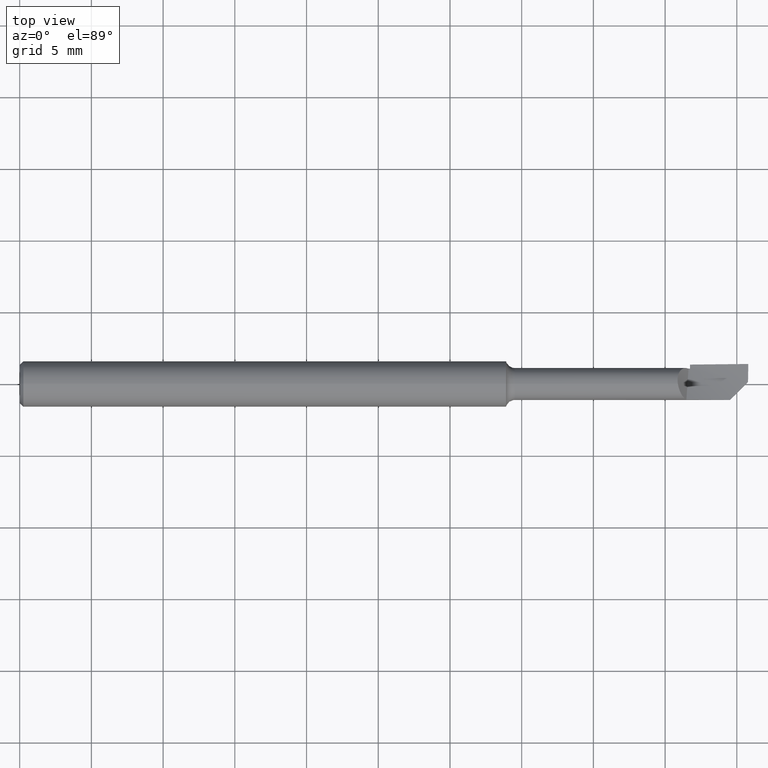
[diagram: clean part render]
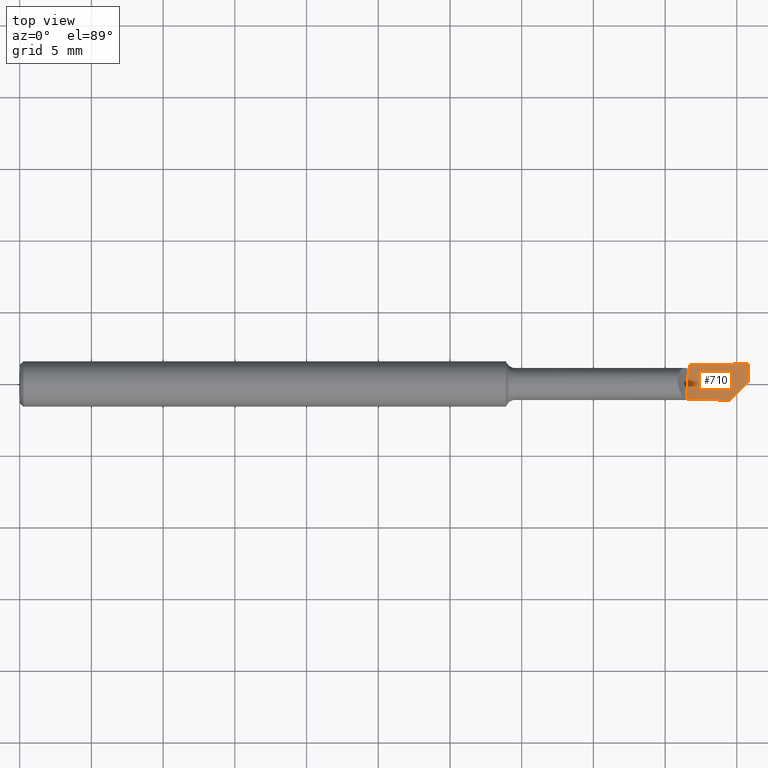
[diagram: same view with one face highlighted and labeled with its STEP entity id]
A machine part, top view. The second image highlights one B-rep face of the part: STEP entity #710.
In plain terms, the highlighted face is a freeform B-spline surface patch.
Its self-contained STEP definition (entity closure, byte-faithful):
#2 = CARTESIAN_POINT ( 'NONE',  ( 1.982541513044761672, -0.01094484340355666996, -0.003318865561971373352 ) ) ;
#7 = CARTESIAN_POINT ( 'NONE',  ( 1.730555555555556291, -0.03801979288879211993, 0.007770946227939592478 ) ) ;
#8 = CARTESIAN_POINT ( 'NONE',  ( 2.000000000000000000, 0.05500000000000000028, 0.000000000000000000 ) ) ;
#43 =( BOUNDED_CURVE ( )  B_SPLINE_CURVE ( 2, ( #347, #217, #472 ),
 .UNSPECIFIED., .F., .T. ) 
 B_SPLINE_CURVE_WITH_KNOTS ( ( 3, 3 ),
 ( 0.7035278658487924552, 1.000000000000000000 ),
 .UNSPECIFIED. ) 
 CURVE ( )  GEOMETRIC_REPRESENTATION_ITEM ( )  RATIONAL_B_SPLINE_CURVE ( ( 0.9810338680910000164, 0.9789367080174533609, 0.9902185229795289478 ) ) 
 REPRESENTATION_ITEM ( '' )  );
#55 = VERTEX_POINT ( 'NONE', #410 ) ;
#62 = CARTESIAN_POINT ( 'NONE',  ( 1.835957477719311948, 0.04247873417013275921, -0.01146983623698223133 ) ) ;
#74 = FACE_OUTER_BOUND ( 'NONE', #510, .T. ) ;
#85 = CARTESIAN_POINT ( 'NONE',  ( 2.000000000000000000, 0.05500000000000000028, 0.000000000000000000 ) ) ;
#94 = CARTESIAN_POINT ( 'NONE',  ( 1.832012808589526198, -0.01525372083031852066, -6.782912152967197710E-05 ) ) ;
#119 = ORIENTED_EDGE ( 'NONE', *, *, #494, .F. ) ;
#127 = EDGE_CURVE ( 'NONE', #486, #322, #43, .T. ) ;
#131 = CARTESIAN_POINT ( 'NONE',  ( 1.865277777777778034, -0.03956553019977161051, 0.0002083392171456643091 ) ) ;
#134 = CARTESIAN_POINT ( 'NONE',  ( 1.999364826860025479, 0.02215196039851312360, -0.002838299606482884603 ) ) ;
#136 = CARTESIAN_POINT ( 'NONE',  ( 1.461111111111112359, 0.08633900936101901458, -0.07254788437159812031 ) ) ;
#143 = CARTESIAN_POINT ( 'NONE',  ( 1.949539431800300759, -0.04394692464801779747, 0.002160512434919499136 ) ) ;
#167 = CARTESIAN_POINT ( 'NONE',  ( 1.840000000000000524, 0.04254520125568710814, -0.01122077760732640046 ) ) ;
#173 = ORIENTED_EDGE ( 'NONE', *, *, #567, .F. ) ;
#177 = ORIENTED_EDGE ( 'NONE', *, *, #700, .F. ) ;
#186 = EDGE_CURVE ( 'NONE', #597, #806, #423, .T. ) ;
#208 = CARTESIAN_POINT ( 'NONE',  ( 1.999629894193607260, 0.03858070557514532706, -0.001847204213407274134 ) ) ;
#217 = CARTESIAN_POINT ( 'NONE',  ( 1.920749231091393616, 0.05500000000000002803, -0.006435595249347012339 ) ) ;
#233 = B_SPLINE_CURVE_WITH_KNOTS ( 'NONE', 3,
 ( #8, #208, #134, #394 ),
 .UNSPECIFIED., .F., .F.,
 ( 4, 4 ),
 ( 8.674036163119721574E-19, 0.001252690469991828322 ),
 .UNSPECIFIED. ) ;
#235 = CARTESIAN_POINT ( 'NONE',  ( 1.829992566228702877, -0.04291472308783400580, 0.009712185248157291506 ) ) ;
#246 =( BOUNDED_CURVE ( )  B_SPLINE_CURVE ( 3, ( #614, #366, #557, #353 ),
 .UNSPECIFIED., .F., .T. ) 
 B_SPLINE_CURVE_WITH_KNOTS ( ( 4, 4 ),
 ( 0.002575251786124032813, 0.002856139665554451555 ),
 .UNSPECIFIED. ) 
 CURVE ( )  GEOMETRIC_REPRESENTATION_ITEM ( )  RATIONAL_B_SPLINE_CURVE ( ( 0.9799569117201767376, 0.9802757602278233673, 0.9806347456847663846, 0.9810338680910057896 ) ) 
 REPRESENTATION_ITEM ( '' )  );
#262 = ORIENTED_EDGE ( 'NONE', *, *, #302, .F. ) ;
#269 = CARTESIAN_POINT ( 'NONE',  ( 1.949539431800300759, -0.04394692464801779747, 0.002160512434919499136 ) ) ;
#272 = CARTESIAN_POINT ( 'NONE',  ( 1.730555555555556291, -0.1000660139471911819, 0.05200397020379683710 ) ) ;
#274 = CARTESIAN_POINT ( 'NONE',  ( 1.835957477719311948, 0.04247873417013275921, -0.01146983623698223133 ) ) ;
#285 = CARTESIAN_POINT ( 'NONE',  ( 1.865277777777778034, 0.03663351151124000227, -0.01494859256165287191 ) ) ;
#299 = VERTEX_POINT ( 'NONE', #167 ) ;
#300 = CARTESIAN_POINT ( 'NONE',  ( 1.829992566228702877, -0.04291472308783400580, 0.009712185248157291506 ) ) ;
#302 = EDGE_CURVE ( 'NONE', #299, #486, #246, .T. ) ;
#321 = CARTESIAN_POINT ( 'NONE',  ( 1.835957477719311948, 0.04247873417013275921, -0.01146983623698223133 ) ) ;
#322 = VERTEX_POINT ( 'NONE', #85 ) ;
#333 = CARTESIAN_POINT ( 'NONE',  ( 1.833984813398985558, 0.01345421080761294470, -0.007187838752243777031 ) ) ;
#336 = CARTESIAN_POINT ( 'NONE',  ( 1.595833333333334325, 0.1007696807897593000, -0.05537398762238337352 ) ) ;
#342 = ORIENTED_EDGE ( 'NONE', *, *, #800, .T. ) ;
#347 = CARTESIAN_POINT ( 'NONE',  ( 1.840000000000000080, 0.05351427328620204926, -0.01269734439360004942 ) ) ;
#353 = CARTESIAN_POINT ( 'NONE',  ( 1.840000000000000080, 0.05351427328620203538, -0.01269734439360004942 ) ) ;
#360 =( BOUNDED_CURVE ( )  B_SPLINE_CURVE ( 2, ( #274, #398, #603 ),
 .UNSPECIFIED., .F., .T. ) 
 B_SPLINE_CURVE_WITH_KNOTS ( ( 3, 3 ),
 ( 0.6960896133483621684, 0.7035278658483815617 ),
 .UNSPECIFIED. ) 
 CURVE ( )  GEOMETRIC_REPRESENTATION_ITEM ( )  RATIONAL_B_SPLINE_CURVE ( ( 0.9800704407896163595, 0.9800094700550632254, 0.9799569117201770707 ) ) 
 REPRESENTATION_ITEM ( '' )  );
#366 = CARTESIAN_POINT ( 'NONE',  ( 1.840000000000000524, 0.04619670446960698340, -0.01175352423322569527 ) ) ;
#377 = B_SPLINE_CURVE_WITH_KNOTS ( 'NONE', 3,
 ( #62, #333, #94, #300 ),
 .UNSPECIFIED., .F., .F.,
 ( 4, 4 ),
 ( 0.000000000000000000, 1.000000000000000000 ),
 .UNSPECIFIED. ) ;
#394 = CARTESIAN_POINT ( 'NONE',  ( 1.999200506997811821, 0.005714150549493749419, -0.003008259690230487022 ) ) ;
#397 = CARTESIAN_POINT ( 'NONE',  ( 2.000000000000000000, 0.1123499999999999360, 0.009751798000210767925 ) ) ;
#398 = CARTESIAN_POINT ( 'NONE',  ( 1.837978504615836339, 0.04251233249372542849, -0.01134540427239556955 ) ) ;
#410 = CARTESIAN_POINT ( 'NONE',  ( 1.999200506997811821, 0.005714150549493749419, -0.003008259690230487022 ) ) ;
#423 =( BOUNDED_CURVE ( )  B_SPLINE_CURVE ( 2, ( #816, #746, #235 ),
 .UNSPECIFIED., .F., .T. ) 
 B_SPLINE_CURVE_WITH_KNOTS ( ( 3, 3 ),
 ( 0.09455965140952782289, 0.3148910267384269490 ),
 .UNSPECIFIED. ) 
 CURVE ( )  GEOMETRIC_REPRESENTATION_ITEM ( )  RATIONAL_B_SPLINE_CURVE ( ( 0.9833022579123034124, 0.9780948911032535387, 0.9802687885623562192 ) ) 
 REPRESENTATION_ITEM ( '' )  );
#435 = B_SPLINE_CURVE_WITH_KNOTS ( 'NONE', 3,
 ( #580, #2, #835, #143 ),
 .UNSPECIFIED., .F., .F.,
 ( 4, 4 ),
 ( 2.861133039103668055E-05, 0.001817312501967736438 ),
 .UNSPECIFIED. ) ;
#454 = CARTESIAN_POINT ( 'NONE',  ( 1.461111111111112359, 0.02172896300873220637, -0.03215189610504084333 ) ) ;
#457 = CARTESIAN_POINT ( 'NONE',  ( 1.730555555555556291, 0.03237894214498534401, -0.02138916459696088568 ) ) ;
#462 = CARTESIAN_POINT ( 'NONE',  ( 1.999999999999999778, 0.03809952085550591394, -0.007370126672253536106 ) ) ;
#469 = VERTEX_POINT ( 'NONE', #321 ) ;
#472 = CARTESIAN_POINT ( 'NONE',  ( 2.000000000000000000, 0.05500000000000000028, 0.000000000000000000 ) ) ;
#486 = VERTEX_POINT ( 'NONE', #524 ) ;
#491 = ORIENTED_EDGE ( 'NONE', *, *, #127, .F. ) ;
#492 = CARTESIAN_POINT ( 'NONE',  ( 1.829992566228702877, -0.04291472308783400580, 0.009712185248157291506 ) ) ;
#494 = EDGE_CURVE ( 'NONE', #469, #299, #360, .T. ) ;
#510 = EDGE_LOOP ( 'NONE', ( #173, #491, #262, #119, #342, #624, #177 ) ) ;
#524 = CARTESIAN_POINT ( 'NONE',  ( 1.840000000000000080, 0.05351427328620203538, -0.01269734439360004942 ) ) ;
#528 = CARTESIAN_POINT ( 'NONE',  ( 1.865277777777778034, -0.1104102467735696008, 0.03209960247531515320 ) ) ;
#557 = CARTESIAN_POINT ( 'NONE',  ( 1.840000000000000968, 0.04985321324318506275, -0.01224571845991804554 ) ) ;
#567 = EDGE_CURVE ( 'NONE', #322, #55, #233, .T. ) ;
#580 = CARTESIAN_POINT ( 'NONE',  ( 1.999200506997811821, 0.005714150549493749419, -0.003008259690230487022 ) ) ;
#590 = CARTESIAN_POINT ( 'NONE',  ( 2.000000000000000000, -0.1123499999999997279, 0.009751798000210630882 ) ) ;
#593 = CARTESIAN_POINT ( 'NONE',  ( 1.595833333333334325, -0.03647405557781263630, 0.01533355323873351883 ) ) ;
#597 = VERTEX_POINT ( 'NONE', #269 ) ;
#603 = CARTESIAN_POINT ( 'NONE',  ( 1.840000000000000524, 0.04254520125568710814, -0.01122077760732640046 ) ) ;
#614 = CARTESIAN_POINT ( 'NONE',  ( 1.840000000000000524, 0.04254520125568710814, -0.01122077760732640046 ) ) ;
#624 = ORIENTED_EDGE ( 'NONE', *, *, #186, .F. ) ;
#625 =( BOUNDED_SURFACE ( )  B_SPLINE_SURFACE ( 3, 2, ( 
 ( #590, #528, #272, #643, #838 ),
 ( #775, #131, #7, #593, #785 ),
 ( #462, #285, #457, #771, #454 ),
 ( #397, #654, #651, #336, #136 ) ),
 .UNSPECIFIED., .F., .F., .T. ) 
 B_SPLINE_SURFACE_WITH_KNOTS ( ( 4, 4 ),
 ( 3, 2, 3 ),
 ( 0.000000000000000000, 1.000000000000000000 ),
 ( 0.000000000000000000, 0.5000000000000000000, 1.000000000000000000 ),
 .UNSPECIFIED. ) 
 GEOMETRIC_REPRESENTATION_ITEM ( )  RATIONAL_B_SPLINE_SURFACE ( (
 ( 1.000000000000000000, 0.9807852804032304306, 1.000000000000000000, 0.9807852804032304306, 1.000000000000000000),
 ( 0.9829519941216796619, 0.9640648471775461470, 0.9829519941216796619, 0.9640648471775461470, 0.9829519941216796619),
 ( 0.9829519941216796619, 0.9640648471775461470, 0.9829519941216796619, 0.9640648471775461470, 0.9829519941216796619),
 ( 1.000000000000000000, 0.9807852804032304306, 1.000000000000000000, 0.9807852804032304306, 1.000000000000000000) ) ) 
 REPRESENTATION_ITEM ( '' )  SURFACE ( )  );
#643 = CARTESIAN_POINT ( 'NONE',  ( 1.595833333333334325, -0.08972178112081276302, 0.07190833793227849324 ) ) ;
#651 = CARTESIAN_POINT ( 'NONE',  ( 1.730555555555556291, 0.1075297170080946885, -0.03398499704863858217 ) ) ;
#654 = CARTESIAN_POINT ( 'NONE',  ( 1.865277777777778034, 0.1142897532264300492, -0.01259600647489379256 ) ) ;
#700 = EDGE_CURVE ( 'NONE', #55, #597, #435, .T. ) ;
#710 = ADVANCED_FACE ( 'NONE', ( #74 ), #625, .T. ) ;
#746 = CARTESIAN_POINT ( 'NONE',  ( 1.889951090927360022, -0.04375909165793846062, 0.005981218174915104921 ) ) ;
#771 = CARTESIAN_POINT ( 'NONE',  ( 1.595833333333334325, 0.02812437277873068575, -0.02782973663226890118 ) ) ;
#775 = CARTESIAN_POINT ( 'NONE',  ( 1.999999999999999778, -0.03809952085550567802, -0.007370126672253623709 ) ) ;
#785 = CARTESIAN_POINT ( 'NONE',  ( 1.461111111111112359, -0.03215189610504074619, 0.02172896300873198086 ) ) ;
#800 = EDGE_CURVE ( 'NONE', #469, #806, #377, .T. ) ;
#806 = VERTEX_POINT ( 'NONE', #492 ) ;
#816 = CARTESIAN_POINT ( 'NONE',  ( 1.949539431800300759, -0.04394692464801779747, 0.002160512434919499136 ) ) ;
#835 = CARTESIAN_POINT ( 'NONE',  ( 1.965987986767433249, -0.02749836968088575570, -0.001592746354514731292 ) ) ;
#838 = CARTESIAN_POINT ( 'NONE',  ( 1.461111111111112359, -0.07254788437159807868, 0.08633900936101877865 ) ) ;